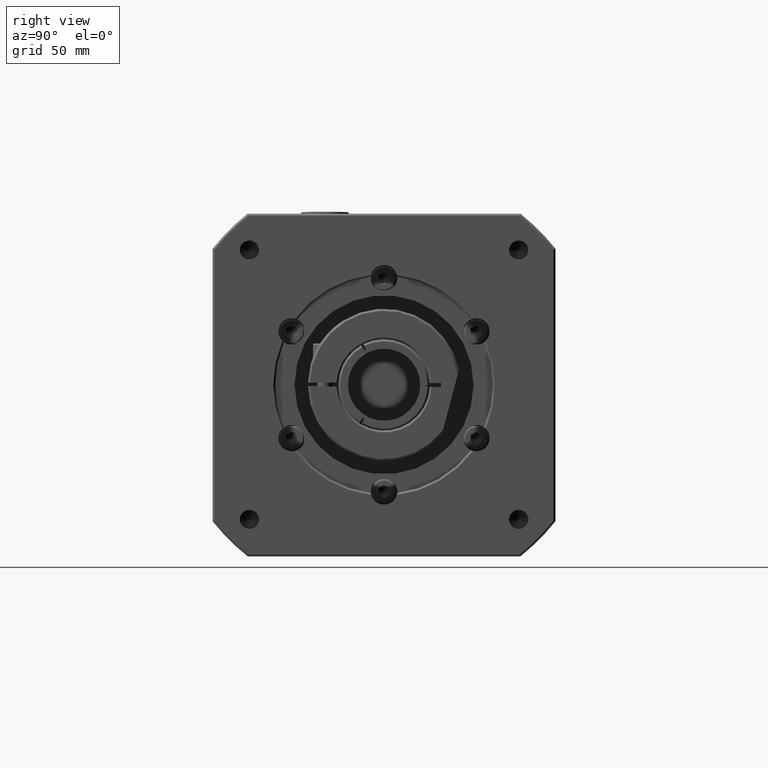
[diagram: clean part render]
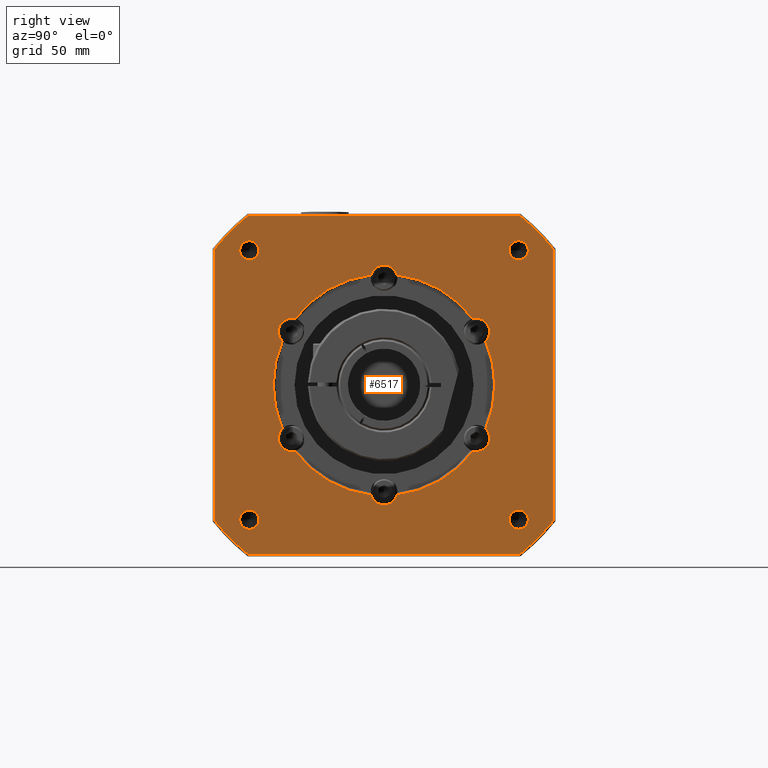
[diagram: same view with one face highlighted and labeled with its STEP entity id]
A machine part, right view. The second image highlights one B-rep face of the part: STEP entity #6517.
In plain terms, the highlighted planar face has unit normal (1, -0, -0).
Its self-contained STEP definition (entity closure, byte-faithful):
#260=LINE('',#10378,#568);
#261=LINE('',#10382,#569);
#262=LINE('',#10386,#570);
#263=LINE('',#10389,#571);
#568=VECTOR('',#8215,142.47806848775);
#569=VECTOR('',#8218,142.47806848775);
#570=VECTOR('',#8221,142.47806848775);
#571=VECTOR('',#8224,142.47806848775);
#1441=FACE_BOUND('',#2224,.T.);
#1442=FACE_BOUND('',#2225,.T.);
#1443=FACE_BOUND('',#2226,.T.);
#1444=FACE_BOUND('',#2227,.T.);
#1445=FACE_BOUND('',#2228,.T.);
#1709=FACE_OUTER_BOUND('',#2223,.T.);
#2223=EDGE_LOOP('',(#4910,#4911,#4912,#4913,#4914,#4915,#4916,#4917));
#2224=EDGE_LOOP('',(#4918,#4919,#4920,#4921,#4922,#4923,#4924,#4925,#4926,
#4927,#4928,#4929));
#2225=EDGE_LOOP('',(#4930));
#2226=EDGE_LOOP('',(#4931));
#2227=EDGE_LOOP('',(#4932));
#2228=EDGE_LOOP('',(#4933));
#2774=CIRCLE('',#7078,58.15);
#2777=CIRCLE('',#7082,7.);
#2779=CIRCLE('',#7085,114.);
#2780=CIRCLE('',#7086,114.);
#2781=CIRCLE('',#7087,114.);
#2782=CIRCLE('',#7088,114.);
#2783=CIRCLE('',#7089,7.);
#2784=CIRCLE('',#7090,58.15);
#2785=CIRCLE('',#7091,7.);
#2786=CIRCLE('',#7092,58.15);
#2787=CIRCLE('',#7093,7.);
#2788=CIRCLE('',#7094,58.15);
#2789=CIRCLE('',#7095,7.);
#2790=CIRCLE('',#7096,58.15);
#2791=CIRCLE('',#7097,7.);
#2792=CIRCLE('',#7098,58.15);
#2793=CIRCLE('',#7099,5.053);
#2794=CIRCLE('',#7100,5.053);
#2795=CIRCLE('',#7101,5.053);
#2796=CIRCLE('',#7102,5.053);
#3222=VERTEX_POINT('',#10344);
#3224=VERTEX_POINT('',#10350);
#3227=VERTEX_POINT('',#10361);
#3231=VERTEX_POINT('',#10374);
#3232=VERTEX_POINT('',#10375);
#3233=VERTEX_POINT('',#10377);
#3234=VERTEX_POINT('',#10379);
#3235=VERTEX_POINT('',#10381);
#3236=VERTEX_POINT('',#10383);
#3237=VERTEX_POINT('',#10385);
#3238=VERTEX_POINT('',#10387);
#3239=VERTEX_POINT('',#10390);
#3240=VERTEX_POINT('',#10392);
#3241=VERTEX_POINT('',#10394);
#3242=VERTEX_POINT('',#10396);
#3243=VERTEX_POINT('',#10398);
#3244=VERTEX_POINT('',#10400);
#3245=VERTEX_POINT('',#10402);
#3246=VERTEX_POINT('',#10404);
#3247=VERTEX_POINT('',#10406);
#3248=VERTEX_POINT('',#10409);
#3249=VERTEX_POINT('',#10411);
#3250=VERTEX_POINT('',#10413);
#3251=VERTEX_POINT('',#10415);
#3874=EDGE_CURVE('',#3222,#3224,#2774,.T.);
#3878=EDGE_CURVE('',#3227,#3224,#2777,.T.);
#3883=EDGE_CURVE('',#3231,#3232,#2779,.T.);
#3884=EDGE_CURVE('',#3233,#3231,#260,.T.);
#3885=EDGE_CURVE('',#3234,#3233,#2780,.T.);
#3886=EDGE_CURVE('',#3235,#3234,#261,.T.);
#3887=EDGE_CURVE('',#3236,#3235,#2781,.T.);
#3888=EDGE_CURVE('',#3237,#3236,#262,.T.);
#3889=EDGE_CURVE('',#3238,#3237,#2782,.T.);
#3890=EDGE_CURVE('',#3232,#3238,#263,.T.);
#3891=EDGE_CURVE('',#3222,#3239,#2783,.T.);
#3892=EDGE_CURVE('',#3240,#3239,#2784,.T.);
#3893=EDGE_CURVE('',#3240,#3241,#2785,.T.);
#3894=EDGE_CURVE('',#3242,#3241,#2786,.T.);
#3895=EDGE_CURVE('',#3242,#3243,#2787,.T.);
#3896=EDGE_CURVE('',#3244,#3243,#2788,.T.);
#3897=EDGE_CURVE('',#3244,#3245,#2789,.T.);
#3898=EDGE_CURVE('',#3246,#3245,#2790,.T.);
#3899=EDGE_CURVE('',#3246,#3247,#2791,.T.);
#3900=EDGE_CURVE('',#3227,#3247,#2792,.T.);
#3901=EDGE_CURVE('',#3248,#3248,#2793,.T.);
#3902=EDGE_CURVE('',#3249,#3249,#2794,.T.);
#3903=EDGE_CURVE('',#3250,#3250,#2795,.T.);
#3904=EDGE_CURVE('',#3251,#3251,#2796,.T.);
#4910=ORIENTED_EDGE('',*,*,#3883,.F.);
#4911=ORIENTED_EDGE('',*,*,#3884,.F.);
#4912=ORIENTED_EDGE('',*,*,#3885,.F.);
#4913=ORIENTED_EDGE('',*,*,#3886,.F.);
#4914=ORIENTED_EDGE('',*,*,#3887,.F.);
#4915=ORIENTED_EDGE('',*,*,#3888,.F.);
#4916=ORIENTED_EDGE('',*,*,#3889,.F.);
#4917=ORIENTED_EDGE('',*,*,#3890,.F.);
#4918=ORIENTED_EDGE('',*,*,#3874,.F.);
#4919=ORIENTED_EDGE('',*,*,#3891,.T.);
#4920=ORIENTED_EDGE('',*,*,#3892,.F.);
#4921=ORIENTED_EDGE('',*,*,#3893,.T.);
#4922=ORIENTED_EDGE('',*,*,#3894,.F.);
#4923=ORIENTED_EDGE('',*,*,#3895,.T.);
#4924=ORIENTED_EDGE('',*,*,#3896,.F.);
#4925=ORIENTED_EDGE('',*,*,#3897,.T.);
#4926=ORIENTED_EDGE('',*,*,#3898,.F.);
#4927=ORIENTED_EDGE('',*,*,#3899,.T.);
#4928=ORIENTED_EDGE('',*,*,#3900,.F.);
#4929=ORIENTED_EDGE('',*,*,#3878,.T.);
#4930=ORIENTED_EDGE('',*,*,#3901,.T.);
#4931=ORIENTED_EDGE('',*,*,#3902,.T.);
#4932=ORIENTED_EDGE('',*,*,#3903,.T.);
#4933=ORIENTED_EDGE('',*,*,#3904,.T.);
#6248=PLANE('',#7084);
#6517=ADVANCED_FACE('',(#1709,#1441,#1442,#1443,#1444,#1445),#6248,.T.);
#7078=AXIS2_PLACEMENT_3D('',#10351,#8197,#8198);
#7082=AXIS2_PLACEMENT_3D('',#10362,#8205,#8206);
#7084=AXIS2_PLACEMENT_3D('',#10373,#8211,#8212);
#7085=AXIS2_PLACEMENT_3D('',#10376,#8213,#8214);
#7086=AXIS2_PLACEMENT_3D('',#10380,#8216,#8217);
#7087=AXIS2_PLACEMENT_3D('',#10384,#8219,#8220);
#7088=AXIS2_PLACEMENT_3D('',#10388,#8222,#8223);
#7089=AXIS2_PLACEMENT_3D('',#10391,#8225,#8226);
#7090=AXIS2_PLACEMENT_3D('',#10393,#8227,#8228);
#7091=AXIS2_PLACEMENT_3D('',#10395,#8229,#8230);
#7092=AXIS2_PLACEMENT_3D('',#10397,#8231,#8232);
#7093=AXIS2_PLACEMENT_3D('',#10399,#8233,#8234);
#7094=AXIS2_PLACEMENT_3D('',#10401,#8235,#8236);
#7095=AXIS2_PLACEMENT_3D('',#10403,#8237,#8238);
#7096=AXIS2_PLACEMENT_3D('',#10405,#8239,#8240);
#7097=AXIS2_PLACEMENT_3D('',#10407,#8241,#8242);
#7098=AXIS2_PLACEMENT_3D('',#10408,#8243,#8244);
#7099=AXIS2_PLACEMENT_3D('',#10410,#8245,#8246);
#7100=AXIS2_PLACEMENT_3D('',#10412,#8247,#8248);
#7101=AXIS2_PLACEMENT_3D('',#10414,#8249,#8250);
#7102=AXIS2_PLACEMENT_3D('',#10416,#8251,#8252);
#8197=DIRECTION('center_axis',(1.,-5.21329617097221E-16,-1.24115431662697E-16));
#8198=DIRECTION('ref_axis',(-5.21329617097221E-16,-1.,-1.74686654030804E-15));
#8205=DIRECTION('center_axis',(-1.,5.21329617097221E-16,1.24115431662697E-16));
#8206=DIRECTION('ref_axis',(-3.89426976320059E-16,-0.866025403784439,0.499999999999999));
#8211=DIRECTION('center_axis',(1.,-5.21329617097221E-16,-1.24115431662697E-16));
#8212=DIRECTION('ref_axis',(0.,-2.8421709430404E-15,1.));
#8213=DIRECTION('center_axis',(-1.,5.21329617097221E-16,1.24115431662697E-16));
#8214=DIRECTION('ref_axis',(1.24115431662696E-16,-1.74686654030804E-15,
1.));
#8215=DIRECTION('',(5.21329617097221E-16,1.,1.94423952246362E-15));
#8216=DIRECTION('center_axis',(-1.,5.21329617097221E-16,1.24115431662697E-16));
#8217=DIRECTION('ref_axis',(1.24115431662696E-16,-1.74686654030804E-15,
1.));
#8218=DIRECTION('',(1.24115431662696E-16,-2.14161250461921E-15,1.));
#8219=DIRECTION('center_axis',(-1.,5.21329617097221E-16,1.24115431662697E-16));
#8220=DIRECTION('ref_axis',(-1.24115431662696E-16,1.74686654030804E-15,
-1.));
#8221=DIRECTION('',(-5.21329617097221E-16,-1.,-1.74686654030804E-15));
#8222=DIRECTION('center_axis',(-1.,5.21329617097221E-16,1.24115431662697E-16));
#8223=DIRECTION('ref_axis',(-1.24115431662696E-16,1.74686654030804E-15,
-1.));
#8224=DIRECTION('',(-1.24115431662696E-16,1.84555303138583E-15,-1.));
#8225=DIRECTION('center_axis',(-1.,5.21329617097221E-16,1.24115431662697E-16));
#8226=DIRECTION('ref_axis',(1.24115431662696E-16,-1.74686654030804E-15,
1.));
#8227=DIRECTION('center_axis',(1.,-5.21329617097221E-16,-1.24115431662697E-16));
#8228=DIRECTION('ref_axis',(5.21329617097221E-16,1.,1.74686654030804E-15));
#8229=DIRECTION('center_axis',(-1.,5.21329617097221E-16,1.24115431662697E-16));
#8230=DIRECTION('ref_axis',(5.13542407982756E-16,0.866025403784438,0.500000000000001));
#8231=DIRECTION('center_axis',(1.,-5.21329617097221E-16,-1.24115431662697E-16));
#8232=DIRECTION('ref_axis',(5.21329617097221E-16,1.,1.74686654030804E-15));
#8233=DIRECTION('center_axis',(-1.,5.21329617097221E-16,1.24115431662697E-16));
#8234=DIRECTION('ref_axis',(3.89426976320059E-16,0.866025403784439,-0.499999999999999));
#8235=DIRECTION('center_axis',(1.,-5.21329617097221E-16,-1.24115431662697E-16));
#8236=DIRECTION('ref_axis',(5.21329617097221E-16,1.,1.74686654030804E-15));
#8237=DIRECTION('center_axis',(-1.,5.21329617097221E-16,1.24115431662697E-16));
#8238=DIRECTION('ref_axis',(-1.24115431662696E-16,1.58826325107587E-15,
-1.));
#8239=DIRECTION('center_axis',(1.,-5.21329617097221E-16,-1.24115431662697E-16));
#8240=DIRECTION('ref_axis',(-5.21329617097221E-16,-1.,-1.74686654030804E-15));
#8241=DIRECTION('center_axis',(-1.,5.21329617097221E-16,1.24115431662697E-16));
#8242=DIRECTION('ref_axis',(-5.13542407982755E-16,-0.866025403784438,-0.500000000000001));
#8243=DIRECTION('center_axis',(1.,-5.21329617097221E-16,-1.24115431662697E-16));
#8244=DIRECTION('ref_axis',(-5.21329617097221E-16,-1.,-1.74686654030804E-15));
#8245=DIRECTION('center_axis',(-1.,5.21329617097221E-16,1.24115431662697E-16));
#8246=DIRECTION('ref_axis',(1.24115431662696E-16,-1.74686654030804E-15,
1.));
#8247=DIRECTION('center_axis',(-1.,5.21329617097221E-16,1.24115431662697E-16));
#8248=DIRECTION('ref_axis',(-5.21329617097221E-16,-1.,-1.68563420035067E-15));
#8249=DIRECTION('center_axis',(-1.,5.21329617097221E-16,1.24115431662697E-16));
#8250=DIRECTION('ref_axis',(-1.24115431662696E-16,1.6244018603933E-15,-1.));
#8251=DIRECTION('center_axis',(-1.,5.21329617097221E-16,1.24115431662697E-16));
#8252=DIRECTION('ref_axis',(5.21329617097221E-16,1.,1.56316952043594E-15));
#10344=CARTESIAN_POINT('',(-60.5593852728371,-157.086750322897,-19.2487536715038));
#10350=CARTESIAN_POINT('',(-60.5593852728371,-196.93786572756,-42.2568058778927));
#10351=CARTESIAN_POINT('Origin',(-60.5593852728371,-150.310004596179,-77.0025259929324));
#10361=CARTESIAN_POINT('',(-60.5593852728371,-203.714611454278,-53.9944737865437));
#10362=CARTESIAN_POINT('Origin',(-60.5593852728371,-198.807427208108,-49.0025259929325));
#10373=CARTESIAN_POINT('Origin',(-60.5593852728371,-150.310004596179,-77.0025259929324));
#10374=CARTESIAN_POINT('',(-60.559385272837,-79.0709703523043,11.9974740070677));
#10375=CARTESIAN_POINT('',(-60.559385272837,-61.3100045961793,-5.76349174905722));
#10376=CARTESIAN_POINT('Origin',(-60.5593852728371,-150.310004596179,-77.0025259929324));
#10377=CARTESIAN_POINT('',(-60.5593852728371,-221.549038840054,11.9974740070675));
#10378=CARTESIAN_POINT('',(-60.5593852728371,-195.310004596179,11.9974740070675));
#10379=CARTESIAN_POINT('',(-60.5593852728371,-239.310004596179,-5.76349174905756));
#10380=CARTESIAN_POINT('Origin',(-60.5593852728371,-150.310004596179,-77.0025259929324));
#10381=CARTESIAN_POINT('',(-60.5593852728371,-239.310004596179,-148.241560236808));
#10382=CARTESIAN_POINT('',(-60.5593852728371,-239.310004596179,-122.002525992933));
#10383=CARTESIAN_POINT('',(-60.5593852728371,-221.549038840054,-166.002525992932));
#10384=CARTESIAN_POINT('Origin',(-60.5593852728371,-150.310004596179,-77.0025259929324));
#10385=CARTESIAN_POINT('',(-60.5593852728371,-79.070970352304,-166.002525992932));
#10386=CARTESIAN_POINT('',(-60.5593852728371,-105.310004596179,-166.002525992932));
#10387=CARTESIAN_POINT('',(-60.5593852728371,-61.310004596179,-148.241560236807));
#10388=CARTESIAN_POINT('Origin',(-60.5593852728371,-150.310004596179,-77.0025259929324));
#10389=CARTESIAN_POINT('',(-60.559385272837,-61.3100045961792,-32.0025259929322));
#10390=CARTESIAN_POINT('',(-60.5593852728371,-143.533258869461,-19.2487536715038));
#10391=CARTESIAN_POINT('Origin',(-60.5593852728371,-150.310004596179,-21.0025259929324));
#10392=CARTESIAN_POINT('',(-60.5593852728371,-103.682143464798,-42.2568058778926));
#10393=CARTESIAN_POINT('Origin',(-60.5593852728371,-150.310004596179,-77.0025259929324));
#10394=CARTESIAN_POINT('',(-60.5593852728371,-96.9053977380805,-53.9944737865435));
#10395=CARTESIAN_POINT('Origin',(-60.5593852728371,-101.812581984251,-49.0025259929324));
#10396=CARTESIAN_POINT('',(-60.5593852728371,-96.9053977380804,-100.010578199321));
#10397=CARTESIAN_POINT('Origin',(-60.5593852728371,-150.310004596179,-77.0025259929324));
#10398=CARTESIAN_POINT('',(-60.5593852728371,-103.682143464798,-111.748246107972));
#10399=CARTESIAN_POINT('Origin',(-60.5593852728371,-101.812581984251,-105.002525992932));
#10400=CARTESIAN_POINT('',(-60.5593852728371,-143.533258869461,-134.756298314361));
#10401=CARTESIAN_POINT('Origin',(-60.5593852728371,-150.310004596179,-77.0025259929324));
#10402=CARTESIAN_POINT('',(-60.5593852728371,-157.086750322897,-134.756298314361));
#10403=CARTESIAN_POINT('Origin',(-60.5593852728371,-150.310004596179,-133.002525992932));
#10404=CARTESIAN_POINT('',(-60.5593852728371,-196.93786572756,-111.748246107972));
#10405=CARTESIAN_POINT('Origin',(-60.5593852728371,-150.310004596179,-77.0025259929324));
#10406=CARTESIAN_POINT('',(-60.5593852728371,-203.714611454278,-100.010578199321));
#10407=CARTESIAN_POINT('Origin',(-60.5593852728371,-198.807427208108,-105.002525992932));
#10408=CARTESIAN_POINT('Origin',(-60.5593852728371,-150.310004596179,-77.0025259929324));
#10409=CARTESIAN_POINT('',(-60.5593852728371,-79.5993264775243,-142.660204111587));
#10410=CARTESIAN_POINT('Origin',(-60.5593852728371,-79.5993264775243,-147.713204111587));
#10411=CARTESIAN_POINT('',(-60.559385272837,-84.6523264775246,-6.2918478742775));
#10412=CARTESIAN_POINT('Origin',(-60.559385272837,-79.5993264775246,-6.29184787427749));
#10413=CARTESIAN_POINT('',(-60.5593852728371,-221.020682714834,-11.3448478742778));
#10414=CARTESIAN_POINT('Origin',(-60.5593852728371,-221.020682714834,-6.2918478742778));
#10415=CARTESIAN_POINT('',(-60.5593852728371,-215.967682714834,-147.713204111587));
#10416=CARTESIAN_POINT('Origin',(-60.5593852728371,-221.020682714834,-147.713204111587));